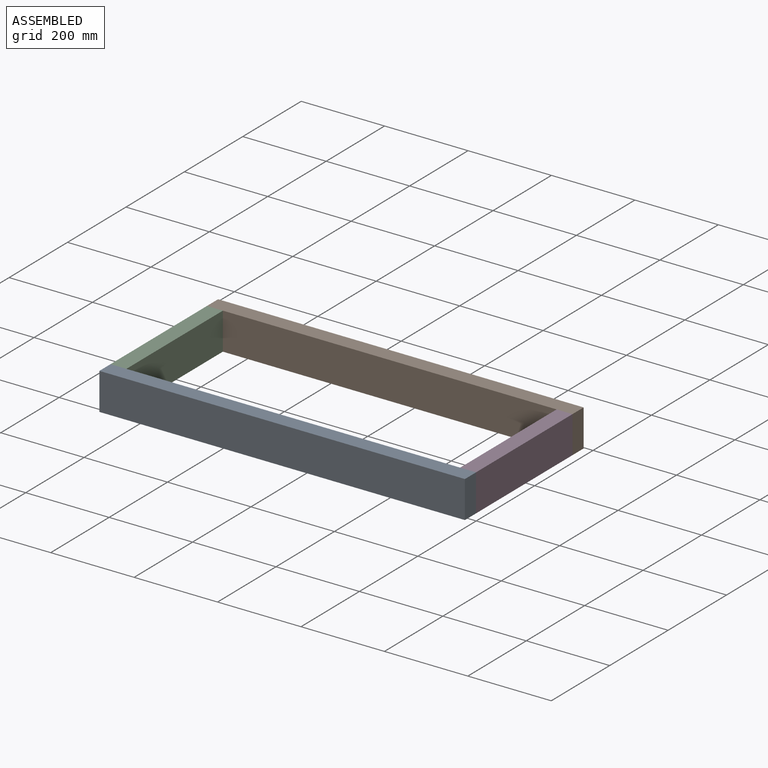
[diagram: assembled view]
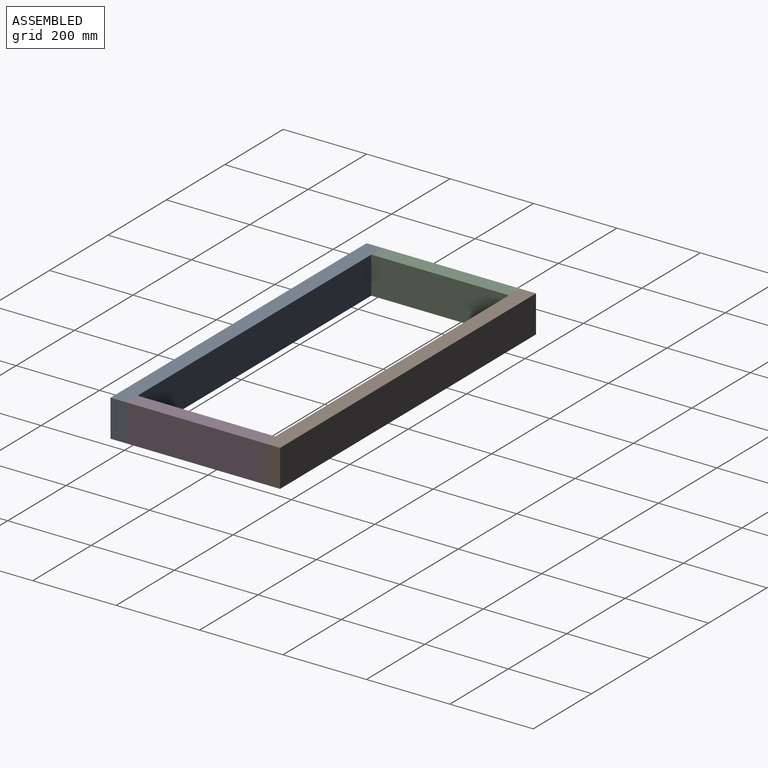
[diagram: assembled view, second angle]
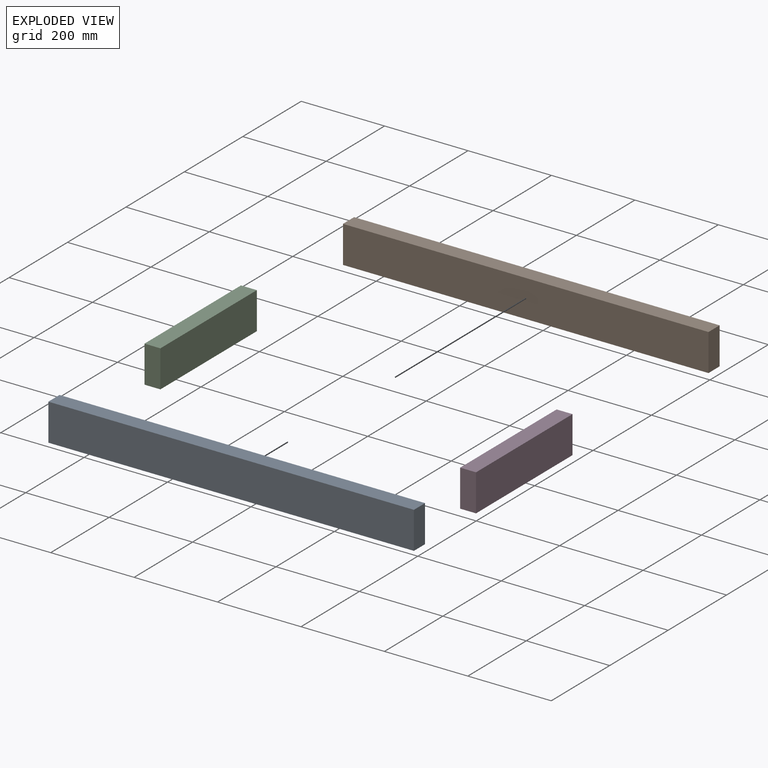
[diagram: exploded view]
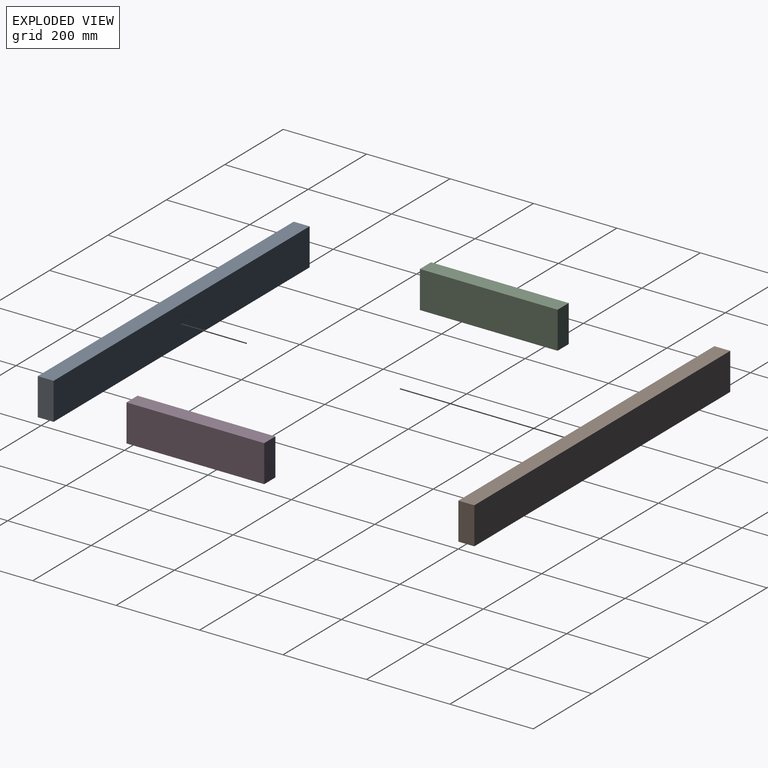
[diagram: exploded view, second angle]
ASSEMBLY  parts=4 mates=3
PART A: 6 faces, bbox 876.3x38.1x88.9 mm
  f0: plane 876.3x38.1mm, normal (0,0,1), area 33387mm2, adj f1,f3,f4,f5
  f1: plane 88.9x38.1mm, normal (-1,0,0), area 3387.1mm2, adj f0,f2,f4,f5
  f2: plane 876.3x38.1mm, normal (0,0,-1), area 33387mm2, adj f1,f3,f4,f5
  f3: plane 88.9x38.1mm, normal (1,0,0), area 3387.1mm2, adj f0,f2,f4,f5
  f4: plane 876.3x88.9mm, normal (0,-1,0), area 77903.1mm2, adj f0,f1,f2,f3
  f5: plane 876.3x88.9mm, normal (0,1,0), area 77903.1mm2, adj f0,f1,f2,f3
PART B: same geometry as A
PART C: 6 faces, bbox 38.1x330.2x88.9 mm
  f0: plane 88.9x38.1mm, normal (0,1,0), area 3387.1mm2, adj f1,f3,f4,f5
  f1: plane 330.2x88.9mm, normal (-1,0,0), area 29354.8mm2, adj f0,f2,f4,f5
  f2: plane 88.9x38.1mm, normal (0,-1,0), area 3387.1mm2, adj f1,f3,f4,f5
  f3: plane 330.2x88.9mm, normal (1,0,0), area 29354.8mm2, adj f0,f2,f4,f5
  f4: plane 330.2x38.1mm, normal (0,0,1), area 12580.6mm2, adj f0,f1,f2,f3
  f5: plane 330.2x38.1mm, normal (0,0,-1), area 12580.6mm2, adj f0,f1,f2,f3
PART D: same geometry as C
PLACE A t=(7.03,-197.06,35.44)mm
PLACE B t=(7.03,171.24,35.44)mm
PLACE C t=(-466.55,-197.06,35.44)mm
PLACE D t=(371.65,-197.06,35.44)mm
MATE fastened D.f2 <-> A.f5  axis (0,-1,0) through (397.53,-197.06,124.34)mm
MATE fastened B.f4 <-> C.f0  axis (0,-1,0) through (-478.77,133.14,124.34)mm
MATE fastened C.f2 <-> A.f5  axis (0,-1,0) through (-478.77,-197.06,124.34)mm
